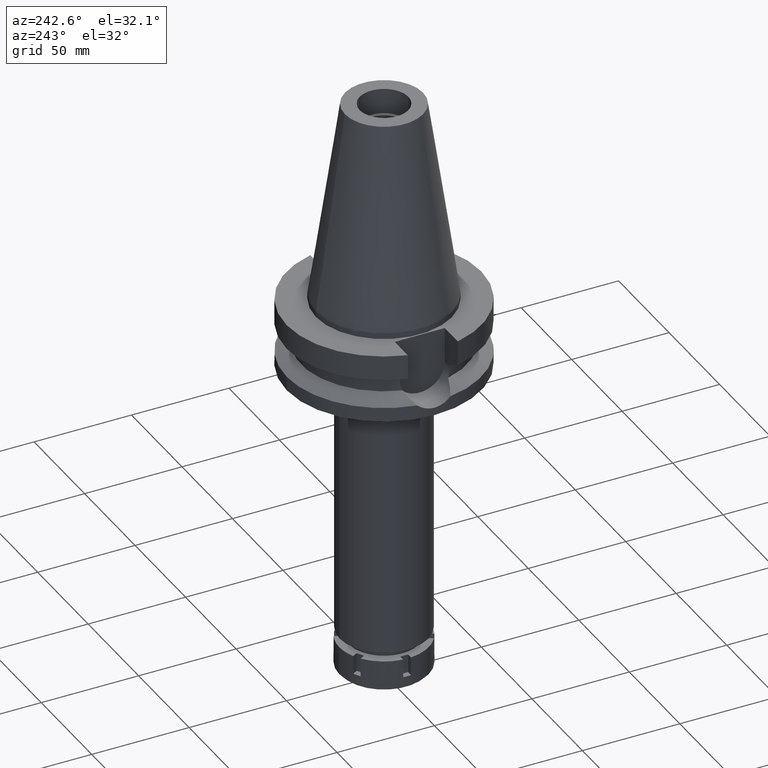
[diagram: clean part render]
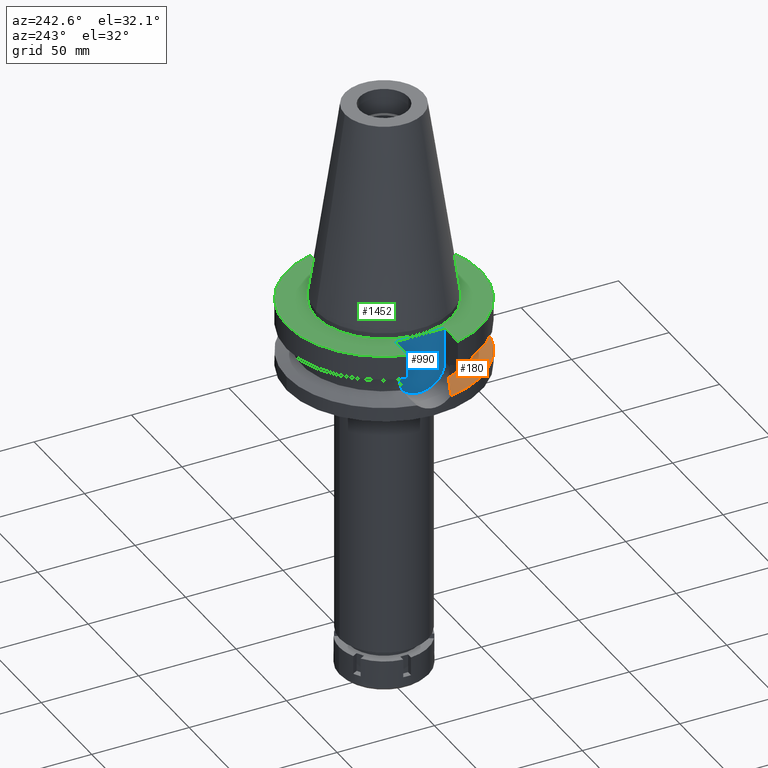
[diagram: same view with three faces highlighted in distinct colors, each labeled with its STEP entity id]
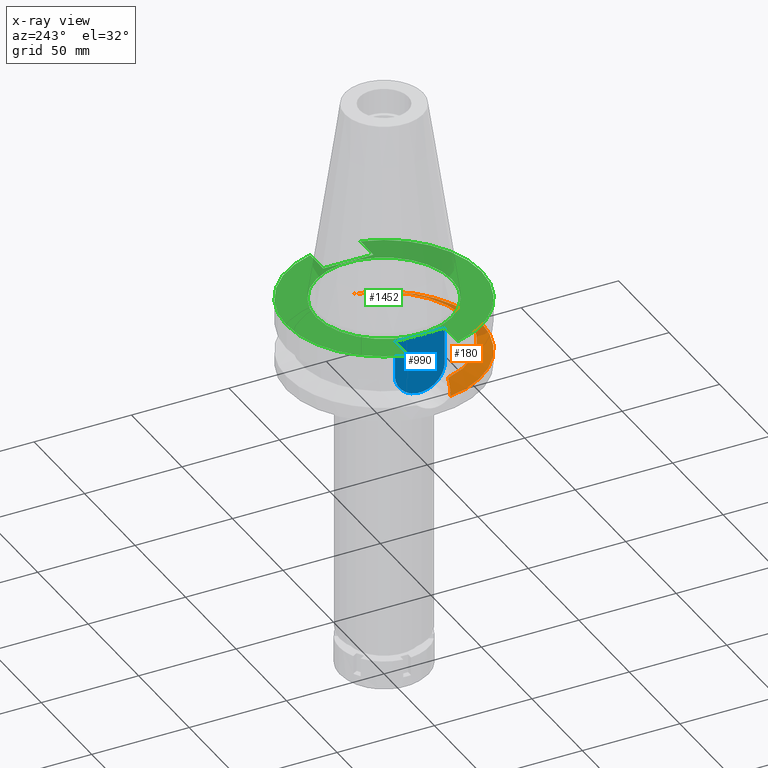
[diagram: x-ray of the same camera — body ghosted, the three highlighted faces saturated]
A machine part, auxiliary view with three faces highlighted in distinct colors.
The next image is the same camera in x-ray (body ghosted, the three faces saturated) — at least one of them is partly hidden behind the body in this view.
Their STEP definitions:

[orange] entity #180 — the highlighted conical surface has half-angle 60 deg.
#18 = CARTESIAN_POINT ( 'NONE',  ( -46.25396439579018448, -10.02146907490290140, -29.19400431873279445 ) ) ;
#132 = CARTESIAN_POINT ( 'NONE',  ( 41.72695202863123853, -11.52184949740022546, -26.86112744394866780 ) ) ;
#150 = CARTESIAN_POINT ( 'NONE',  ( 44.63123778810563635, -10.63756159773538634, -28.35952781543874934 ) ) ;
#170 = CARTESIAN_POINT ( 'NONE',  ( 0.0000000000000000000, 0.0000000000000000000, -30.73730776426999967 ) ) ;
#180 = ADVANCED_FACE ( 'NONE', ( #1083 ), #586, .T. ) ;
#289 = CARTESIAN_POINT ( 'NONE',  ( -49.26250064874000145, -8.556052234130000045, -30.73730776426999967 ) ) ;
#295 = EDGE_CURVE ( 'NONE', #1453, #646, #1500, .T. ) ;
#456 = CARTESIAN_POINT ( 'NONE',  ( 45.41306824773652551, -10.35296097958683426, -28.76175938571563151 ) ) ;
#549 = CARTESIAN_POINT ( 'NONE',  ( -42.54326468270485861, -11.33227848434053797, -27.28393814605706069 ) ) ;
#574 = CARTESIAN_POINT ( 'NONE',  ( -45.51187672697192710, -10.31558072969785655, -28.81242833707006312 ) ) ;
#586 = CONICAL_SURFACE ( 'NONE', #3100, 46.25000000000000000, 1.047197551196400456 ) ;
#592 = ORIENTED_EDGE ( 'NONE', *, *, #693, .F. ) ;
#626 = EDGE_CURVE ( 'NONE', #2498, #1453, #3583, .T. ) ;
#646 = VERTEX_POINT ( 'NONE', #2208 ) ;
#693 = EDGE_CURVE ( 'NONE', #2364, #901, #3269, .T. ) ;
#726 = EDGE_LOOP ( 'NONE', ( #2187, #1881, #592, #1603, #958 ) ) ;
#754 = DIRECTION ( 'NONE',  ( 0.0000000000000000000, 0.0000000000000000000, 1.000000000000000000 ) ) ;
#847 = CARTESIAN_POINT ( 'NONE',  ( 40.85052569294000335, -11.72538061688000077, -26.40718074535000426 ) ) ;
#866 = CARTESIAN_POINT ( 'NONE',  ( -45.36071901025126607, -10.37281303707899660, -28.73467481335286067 ) ) ;
#901 = VERTEX_POINT ( 'NONE', #1236 ) ;
#958 = ORIENTED_EDGE ( 'NONE', *, *, #295, .F. ) ;
#1000 = DIRECTION ( 'NONE',  ( 0.0000000000000000000, 0.0000000000000000000, -1.000000000000000000 ) ) ;
#1083 = FACE_OUTER_BOUND ( 'NONE', #726, .T. ) ;
#1118 = CARTESIAN_POINT ( 'NONE',  ( 0.0000000000000000000, 0.0000000000000000000, -26.40718074535000426 ) ) ;
#1119 = CARTESIAN_POINT ( 'NONE',  ( -48.69896096658353457, -8.879448468684053353, -30.44869753674877444 ) ) ;
#1175 = CARTESIAN_POINT ( 'NONE',  ( -45.67203791256756062, -10.25409790744994609, -28.89480489721264078 ) ) ;
#1205 = AXIS2_PLACEMENT_3D ( 'NONE', #170, #1000, #3065 ) ;
#1236 = CARTESIAN_POINT ( 'NONE',  ( 49.26250064874000145, -8.556052234130000045, -30.73730776426999967 ) ) ;
#1285 = CARTESIAN_POINT ( 'NONE',  ( 45.34957090568771321, -10.37694622521031285, -28.72910062368678652 ) ) ;
#1303 = DIRECTION ( 'NONE',  ( 0.0000000000000000000, 0.0000000000000000000, -1.000000000000000000 ) ) ;
#1405 = CARTESIAN_POINT ( 'NONE',  ( -45.98873206604169894, -10.12991765860879489, -29.05766394424529508 ) ) ;
#1439 = CARTESIAN_POINT ( 'NONE',  ( -46.77613598621953628, -9.802087916238910736, -29.46233806329072635 ) ) ;
#1453 = VERTEX_POINT ( 'NONE', #2378 ) ;
#1461 = CARTESIAN_POINT ( 'NONE',  ( -48.09119158273288264, -9.195404228237050503, -30.13731677851605184 ) ) ;
#1500 = B_SPLINE_CURVE_WITH_KNOTS ( 'NONE', 3,
 ( #289, #1119, #1461, #2805, #1439, #18, #1405, #1175, #574, #3666, #2545, #1941, #866, #2006, #549, #2304 ),
 .UNSPECIFIED., .F., .F.,
 ( 4, 2, 2, 1, 1, 1, 1, 2, 2, 4 ),
 ( 0.0000000000000000000, 0.2500000000000504596, 0.3750000000000764944, 0.4375000000000892619, 0.4687500000000949796, 0.4843750000000970335, 0.4921875000000983102, 0.4960937500000983658, 0.5000000000000983658, 1.000000000000000000 ),
 .UNSPECIFIED. ) ;
#1552 = EDGE_CURVE ( 'NONE', #901, #2498, #3639, .T. ) ;
#1596 = CARTESIAN_POINT ( 'NONE',  ( 49.26250064874000145, -8.556052234130000045, -30.73730776426999967 ) ) ;
#1603 = ORIENTED_EDGE ( 'NONE', *, *, #3368, .F. ) ;
#1617 = CARTESIAN_POINT ( 'NONE',  ( 43.71411760152985693, -10.94470254648135388, -27.88719717605412640 ) ) ;
#1659 = CARTESIAN_POINT ( 'NONE',  ( 0.0000000000000000000, 0.0000000000000000000, -30.73730776426999967 ) ) ;
#1874 = CARTESIAN_POINT ( 'NONE',  ( 42.55240329774009922, -11.29884384422376620, -27.28791383645897994 ) ) ;
#1881 = ORIENTED_EDGE ( 'NONE', *, *, #1552, .F. ) ;
#1911 = CARTESIAN_POINT ( 'NONE',  ( 40.85052569294000335, -11.72538061688000077, -26.40718074535000426 ) ) ;
#1919 = CARTESIAN_POINT ( 'NONE',  ( 0.0000000000000000000, 0.0000000000000000000, -28.57224425480999841 ) ) ;
#1941 = CARTESIAN_POINT ( 'NONE',  ( -45.37363466498275955, -10.36795226677648252, -28.74131872897083184 ) ) ;
#2006 = CARTESIAN_POINT ( 'NONE',  ( -44.04325816354837997, -10.86783997201683150, -28.05695532107126766 ) ) ;
#2105 = AXIS2_PLACEMENT_3D ( 'NONE', #1118, #754, #2490 ) ;
#2177 = DIRECTION ( 'NONE',  ( 0.0000000000000000000, 0.0000000000000000000, -1.000000000000000000 ) ) ;
#2187 = ORIENTED_EDGE ( 'NONE', *, *, #626, .F. ) ;
#2208 = CARTESIAN_POINT ( 'NONE',  ( -40.85052569294000335, -11.72538061688000077, -26.40718074535000426 ) ) ;
#2304 = CARTESIAN_POINT ( 'NONE',  ( -40.85052569294000335, -11.72538061688000077, -26.40718074535000426 ) ) ;
#2364 = VERTEX_POINT ( 'NONE', #847 ) ;
#2378 = CARTESIAN_POINT ( 'NONE',  ( -49.26250064874000145, -8.556052234130000045, -30.73730776426999967 ) ) ;
#2449 = CARTESIAN_POINT ( 'NONE',  ( 45.20036505379954406, -10.43275246839017356, -28.65235555152838032 ) ) ;
#2475 = DIRECTION ( 'NONE',  ( 0.9852500129747439050, -0.1711210446826074982, 0.0000000000000000000 ) ) ;
#2490 = DIRECTION ( 'NONE',  ( 0.0000000000000000000, -1.000000000000000000, 0.0000000000000000000 ) ) ;
#2498 = VERTEX_POINT ( 'NONE', #2963 ) ;
#2545 = CARTESIAN_POINT ( 'NONE',  ( -45.39673079969388425, -10.35924287964922819, -28.75319940626416582 ) ) ;
#2622 = AXIS2_PLACEMENT_3D ( 'NONE', #1659, #1303, #2475 ) ;
#2760 = CARTESIAN_POINT ( 'NONE',  ( 45.45530024842548755, -10.33695596987587351, -28.78348041641067212 ) ) ;
#2805 = CARTESIAN_POINT ( 'NONE',  ( -47.11319295441553834, -9.652523060434374358, -29.63542892359021153 ) ) ;
#2963 = CARTESIAN_POINT ( 'NONE',  ( 0.0000000000000000000, -50.00000000000000000, -30.73730776426999967 ) ) ;
#3009 = CARTESIAN_POINT ( 'NONE',  ( 44.08861193614752239, -10.82337365640191607, -28.08015980787621046 ) ) ;
#3044 = CARTESIAN_POINT ( 'NONE',  ( 46.91824578726060224, -9.778909190488992209, -29.53589573621364650 ) ) ;
#3065 = DIRECTION ( 'NONE',  ( 0.0000000000000000000, -1.000000000000000000, 0.0000000000000000000 ) ) ;
#3100 = AXIS2_PLACEMENT_3D ( 'NONE', #1919, #2177, #3298 ) ;
#3269 = B_SPLINE_CURVE_WITH_KNOTS ( 'NONE', 3,
 ( #1911, #132, #1874, #1617, #3009, #150, #3311, #2449, #1285, #456, #2760, #3343, #3044, #3592, #1596 ),
 .UNSPECIFIED., .F., .F.,
 ( 4, 2, 2, 1, 1, 1, 2, 2, 4 ),
 ( 0.0000000000000000000, 0.2499999999999961142, 0.3749999999999942824, 0.4374999999999924505, 0.4687499999999922839, 0.4843749999999919509, 0.4921874999999915068, 0.4999999999999910627, 1.000000000000000000 ),
 .UNSPECIFIED. ) ;
#3298 = DIRECTION ( 'NONE',  ( 0.0000000000000000000, -1.000000000000000000, 0.0000000000000000000 ) ) ;
#3311 = CARTESIAN_POINT ( 'NONE',  ( 44.89777180159259018, -10.54369986332112497, -28.49669416976078651 ) ) ;
#3343 = CARTESIAN_POINT ( 'NONE',  ( 45.47518192561215500, -10.32939791229225790, -28.79370596452621456 ) ) ;
#3368 = EDGE_CURVE ( 'NONE', #646, #2364, #3530, .T. ) ;
#3530 = CIRCLE ( 'NONE', #2105, 42.50000000000000000 ) ;
#3583 = CIRCLE ( 'NONE', #1205, 50.00000000000000000 ) ;
#3592 = CARTESIAN_POINT ( 'NONE',  ( 48.17328503414093177, -9.181115986571578347, -30.17947878380489968 ) ) ;
#3639 = CIRCLE ( 'NONE', #2622, 50.00000000000000000 ) ;
#3666 = CARTESIAN_POINT ( 'NONE',  ( -45.43134260695949678, -10.34616761638278959, -28.77100354274032412 ) ) ;

[blue] entity #990 — the highlighted planar face has unit normal (-1, 0, 0).
#343 = EDGE_CURVE ( 'NONE', #3548, #2901, #2853, .T. ) ;
#374 = DIRECTION ( 'NONE',  ( 0.0000000000000000000, 0.0000000000000000000, 1.000000000000000000 ) ) ;
#532 = DIRECTION ( 'NONE',  ( 0.0000000000000000000, 0.0000000000000000000, 1.000000000000000000 ) ) ;
#557 = CARTESIAN_POINT ( 'NONE',  ( -35.39999999999999858, -12.84999999999999964, -21.14999999999999858 ) ) ;
#562 = DIRECTION ( 'NONE',  ( 0.0000000000000000000, 0.0000000000000000000, -1.000000000000000000 ) ) ;
#660 = EDGE_LOOP ( 'NONE', ( #2733, #1526, #1071, #3447 ) ) ;
#713 = DIRECTION ( 'NONE',  ( 1.000000000000000000, 0.0000000000000000000, 0.0000000000000000000 ) ) ;
#848 = CARTESIAN_POINT ( 'NONE',  ( -35.39999999999999858, -12.84999999999999964, -3.000000000000000000 ) ) ;
#878 = VERTEX_POINT ( 'NONE', #2940 ) ;
#990 = ADVANCED_FACE ( 'NONE', ( #2695 ), #3523, .T. ) ;
#991 = CARTESIAN_POINT ( 'NONE',  ( -35.39999999999999858, 2.015768631397000034E-14, 0.0000000000000000000 ) ) ;
#1023 = AXIS2_PLACEMENT_3D ( 'NONE', #991, #2973, #374 ) ;
#1028 = VECTOR ( 'NONE', #2043, 1000.000000000000000 ) ;
#1053 = EDGE_CURVE ( 'NONE', #1930, #878, #1408, .T. ) ;
#1071 = ORIENTED_EDGE ( 'NONE', *, *, #343, .F. ) ;
#1249 = DIRECTION ( 'NONE',  ( 0.0000000000000000000, -1.000000000000000000, 0.0000000000000000000 ) ) ;
#1262 = VECTOR ( 'NONE', #532, 1000.000000000000000 ) ;
#1408 = LINE ( 'NONE', #2535, #1262 ) ;
#1427 = EDGE_CURVE ( 'NONE', #2901, #1930, #3157, .T. ) ;
#1526 = ORIENTED_EDGE ( 'NONE', *, *, #1427, .F. ) ;
#1613 = VECTOR ( 'NONE', #562, 1000.000000000000000 ) ;
#1727 = LINE ( 'NONE', #2824, #1028 ) ;
#1733 = AXIS2_PLACEMENT_3D ( 'NONE', #2107, #713, #1249 ) ;
#1737 = EDGE_CURVE ( 'NONE', #3548, #878, #1727, .T. ) ;
#1930 = VERTEX_POINT ( 'NONE', #3536 ) ;
#1964 = CARTESIAN_POINT ( 'NONE',  ( -35.39999999999999858, -12.84999999999999964, -3.000000000000000000 ) ) ;
#2043 = DIRECTION ( 'NONE',  ( 0.0000000000000000000, 1.000000000000000000, 0.0000000000000000000 ) ) ;
#2107 = CARTESIAN_POINT ( 'NONE',  ( -35.39999999999999858, 1.497743035356999952E-14, -21.14999999999999858 ) ) ;
#2535 = CARTESIAN_POINT ( 'NONE',  ( -35.39999999999999858, 12.84999999999999964, -21.14999999999999858 ) ) ;
#2695 = FACE_OUTER_BOUND ( 'NONE', #660, .T. ) ;
#2733 = ORIENTED_EDGE ( 'NONE', *, *, #1053, .F. ) ;
#2824 = CARTESIAN_POINT ( 'NONE',  ( -35.39999999999999858, -12.84999999999999964, -3.000000000000000000 ) ) ;
#2853 = LINE ( 'NONE', #848, #1613 ) ;
#2901 = VERTEX_POINT ( 'NONE', #557 ) ;
#2940 = CARTESIAN_POINT ( 'NONE',  ( -35.39999999999999858, 12.84999999999999964, -3.000000000000000000 ) ) ;
#2973 = DIRECTION ( 'NONE',  ( -1.000000000000000000, 0.0000000000000000000, 0.0000000000000000000 ) ) ;
#3157 = CIRCLE ( 'NONE', #1733, 12.84999999999999964 ) ;
#3447 = ORIENTED_EDGE ( 'NONE', *, *, #1737, .T. ) ;
#3523 = PLANE ( 'NONE',  #1023 ) ;
#3536 = CARTESIAN_POINT ( 'NONE',  ( -35.39999999999999858, 12.84999999999999964, -21.14999999999999858 ) ) ;
#3548 = VERTEX_POINT ( 'NONE', #1964 ) ;

[green] entity #1452 — the highlighted planar face has unit normal (0, 0, -1).
#6 = ORIENTED_EDGE ( 'NONE', *, *, #1891, .F. ) ;
#11 = ORIENTED_EDGE ( 'NONE', *, *, #870, .F. ) ;
#37 = EDGE_CURVE ( 'NONE', #2657, #1793, #1003, .T. ) ;
#94 = DIRECTION ( 'NONE',  ( 0.0000000000000000000, -1.000000000000000000, 0.0000000000000000000 ) ) ;
#158 = CARTESIAN_POINT ( 'NONE',  ( 0.0000000000000000000, 2.651237855473999832E-14, -3.000000000000000000 ) ) ;
#251 = CIRCLE ( 'NONE', #1504, 34.92499999999999716 ) ;
#263 = LINE ( 'NONE', #3159, #1321 ) ;
#326 = CARTESIAN_POINT ( 'NONE',  ( 48.32057015392000210, 12.84999999999999964, -3.000000000000000000 ) ) ;
#385 = CARTESIAN_POINT ( 'NONE',  ( 0.0000000000000000000, 1.187907395172999884E-14, -3.000000000000000000 ) ) ;
#422 = EDGE_LOOP ( 'NONE', ( #11, #6 ) ) ;
#438 = CARTESIAN_POINT ( 'NONE',  ( 35.39999999999999858, -12.84999999999999964, -3.000000000000000000 ) ) ;
#564 = VERTEX_POINT ( 'NONE', #1820 ) ;
#581 = EDGE_CURVE ( 'NONE', #2606, #1769, #1041, .T. ) ;
#654 = FACE_BOUND ( 'NONE', #422, .T. ) ;
#673 = DIRECTION ( 'NONE',  ( 0.0000000000000000000, 0.0000000000000000000, 1.000000000000000000 ) ) ;
#766 = CARTESIAN_POINT ( 'NONE',  ( -48.32057015392000210, 12.84999999999999964, -3.000000000000000000 ) ) ;
#778 = AXIS2_PLACEMENT_3D ( 'NONE', #158, #673, #1589 ) ;
#785 = DIRECTION ( 'NONE',  ( 0.0000000000000000000, 1.000000000000000000, 0.0000000000000000000 ) ) ;
#870 = EDGE_CURVE ( 'NONE', #2353, #564, #959, .T. ) ;
#878 = VERTEX_POINT ( 'NONE', #2940 ) ;
#959 = CIRCLE ( 'NONE', #778, 34.92499999999999716 ) ;
#964 = DIRECTION ( 'NONE',  ( 0.0000000000000000000, -1.000000000000000000, 0.0000000000000000000 ) ) ;
#1003 = LINE ( 'NONE', #2432, #1201 ) ;
#1020 = VECTOR ( 'NONE', #1359, 1000.000000000000000 ) ;
#1028 = VECTOR ( 'NONE', #2043, 1000.000000000000000 ) ;
#1041 = LINE ( 'NONE', #438, #1020 ) ;
#1095 = CIRCLE ( 'NONE', #2987, 50.00000000000000000 ) ;
#1120 = DIRECTION ( 'NONE',  ( -1.000000000000000000, 0.0000000000000000000, 0.0000000000000000000 ) ) ;
#1201 = VECTOR ( 'NONE', #3596, 1000.000000000000000 ) ;
#1280 = ORIENTED_EDGE ( 'NONE', *, *, #3123, .F. ) ;
#1321 = VECTOR ( 'NONE', #1120, 1000.000000000000000 ) ;
#1355 = ORIENTED_EDGE ( 'NONE', *, *, #2488, .F. ) ;
#1359 = DIRECTION ( 'NONE',  ( 1.000000000000000000, 0.0000000000000000000, 0.0000000000000000000 ) ) ;
#1440 = CARTESIAN_POINT ( 'NONE',  ( 48.32057015392000210, -12.84999999999999964, -3.000000000000000000 ) ) ;
#1452 = ADVANCED_FACE ( 'NONE', ( #3217, #654 ), #1809, .F. ) ;
#1504 = AXIS2_PLACEMENT_3D ( 'NONE', #3480, #2375, #964 ) ;
#1533 = DIRECTION ( 'NONE',  ( 0.0000000000000000000, 0.0000000000000000000, -1.000000000000000000 ) ) ;
#1589 = DIRECTION ( 'NONE',  ( 0.0000000000000000000, 1.000000000000000000, 0.0000000000000000000 ) ) ;
#1633 = DIRECTION ( 'NONE',  ( 0.0000000000000000000, 0.0000000000000000000, -1.000000000000000000 ) ) ;
#1649 = CARTESIAN_POINT ( 'NONE',  ( 0.0000000000000000000, 2.651237855473999832E-14, -3.000000000000000000 ) ) ;
#1667 = EDGE_CURVE ( 'NONE', #878, #2674, #263, .T. ) ;
#1727 = LINE ( 'NONE', #2824, #1028 ) ;
#1737 = EDGE_CURVE ( 'NONE', #3548, #878, #1727, .T. ) ;
#1741 = LINE ( 'NONE', #3170, #3296 ) ;
#1769 = VERTEX_POINT ( 'NONE', #1440 ) ;
#1793 = VERTEX_POINT ( 'NONE', #326 ) ;
#1809 = PLANE ( 'NONE',  #2382 ) ;
#1817 = VERTEX_POINT ( 'NONE', #3112 ) ;
#1820 = CARTESIAN_POINT ( 'NONE',  ( 0.0000000000000000000, -34.92499999999999716, -3.000000000000000000 ) ) ;
#1891 = EDGE_CURVE ( 'NONE', #564, #2353, #251, .T. ) ;
#1937 = CARTESIAN_POINT ( 'NONE',  ( -35.39999999999999858, -12.84999999999999964, -3.000000000000000000 ) ) ;
#1950 = CARTESIAN_POINT ( 'NONE',  ( 35.39999999999999858, 12.84999999999999964, -3.000000000000000000 ) ) ;
#1960 = ORIENTED_EDGE ( 'NONE', *, *, #1737, .F. ) ;
#1964 = CARTESIAN_POINT ( 'NONE',  ( -35.39999999999999858, -12.84999999999999964, -3.000000000000000000 ) ) ;
#2023 = ORIENTED_EDGE ( 'NONE', *, *, #37, .T. ) ;
#2033 = AXIS2_PLACEMENT_3D ( 'NONE', #3251, #2356, #2395 ) ;
#2043 = DIRECTION ( 'NONE',  ( 0.0000000000000000000, 1.000000000000000000, 0.0000000000000000000 ) ) ;
#2287 = EDGE_LOOP ( 'NONE', ( #3452, #1355, #3382, #2982, #2023, #1280, #3303, #1960 ) ) ;
#2302 = CARTESIAN_POINT ( 'NONE',  ( 0.0000000000000000000, 34.92499999999999716, -3.000000000000000000 ) ) ;
#2338 = VECTOR ( 'NONE', #2528, 1000.000000000000000 ) ;
#2353 = VERTEX_POINT ( 'NONE', #2302 ) ;
#2356 = DIRECTION ( 'NONE',  ( 0.0000000000000000000, 0.0000000000000000000, -1.000000000000000000 ) ) ;
#2375 = DIRECTION ( 'NONE',  ( 0.0000000000000000000, 0.0000000000000000000, 1.000000000000000000 ) ) ;
#2382 = AXIS2_PLACEMENT_3D ( 'NONE', #385, #1533, #94 ) ;
#2395 = DIRECTION ( 'NONE',  ( 0.0000000000000000000, -1.000000000000000000, 0.0000000000000000000 ) ) ;
#2432 = CARTESIAN_POINT ( 'NONE',  ( 35.39999999999999858, 12.84999999999999964, -3.000000000000000000 ) ) ;
#2488 = EDGE_CURVE ( 'NONE', #1769, #1817, #2808, .T. ) ;
#2528 = DIRECTION ( 'NONE',  ( -1.000000000000000000, 0.0000000000000000000, 0.0000000000000000000 ) ) ;
#2606 = VERTEX_POINT ( 'NONE', #3606 ) ;
#2657 = VERTEX_POINT ( 'NONE', #1950 ) ;
#2674 = VERTEX_POINT ( 'NONE', #766 ) ;
#2808 = CIRCLE ( 'NONE', #2033, 50.00000000000000000 ) ;
#2824 = CARTESIAN_POINT ( 'NONE',  ( -35.39999999999999858, -12.84999999999999964, -3.000000000000000000 ) ) ;
#2882 = DIRECTION ( 'NONE',  ( 0.0000000000000000000, -1.000000000000000000, 0.0000000000000000000 ) ) ;
#2940 = CARTESIAN_POINT ( 'NONE',  ( -35.39999999999999858, 12.84999999999999964, -3.000000000000000000 ) ) ;
#2982 = ORIENTED_EDGE ( 'NONE', *, *, #3461, .F. ) ;
#2987 = AXIS2_PLACEMENT_3D ( 'NONE', #1649, #1633, #785 ) ;
#3112 = CARTESIAN_POINT ( 'NONE',  ( -48.32057015392000210, -12.84999999999999964, -3.000000000000000000 ) ) ;
#3123 = EDGE_CURVE ( 'NONE', #2674, #1793, #1095, .T. ) ;
#3159 = CARTESIAN_POINT ( 'NONE',  ( -35.39999999999999858, 12.84999999999999964, -3.000000000000000000 ) ) ;
#3170 = CARTESIAN_POINT ( 'NONE',  ( 35.39999999999999858, 12.84999999999999964, -3.000000000000000000 ) ) ;
#3217 = FACE_OUTER_BOUND ( 'NONE', #2287, .T. ) ;
#3251 = CARTESIAN_POINT ( 'NONE',  ( 0.0000000000000000000, 2.651237855473999832E-14, -3.000000000000000000 ) ) ;
#3296 = VECTOR ( 'NONE', #2882, 1000.000000000000000 ) ;
#3303 = ORIENTED_EDGE ( 'NONE', *, *, #1667, .F. ) ;
#3382 = ORIENTED_EDGE ( 'NONE', *, *, #581, .F. ) ;
#3389 = EDGE_CURVE ( 'NONE', #3548, #1817, #3610, .T. ) ;
#3452 = ORIENTED_EDGE ( 'NONE', *, *, #3389, .T. ) ;
#3461 = EDGE_CURVE ( 'NONE', #2657, #2606, #1741, .T. ) ;
#3480 = CARTESIAN_POINT ( 'NONE',  ( 0.0000000000000000000, 2.651237855473999832E-14, -3.000000000000000000 ) ) ;
#3548 = VERTEX_POINT ( 'NONE', #1964 ) ;
#3596 = DIRECTION ( 'NONE',  ( 1.000000000000000000, 0.0000000000000000000, 0.0000000000000000000 ) ) ;
#3606 = CARTESIAN_POINT ( 'NONE',  ( 35.39999999999999858, -12.84999999999999964, -3.000000000000000000 ) ) ;
#3610 = LINE ( 'NONE', #1937, #2338 ) ;